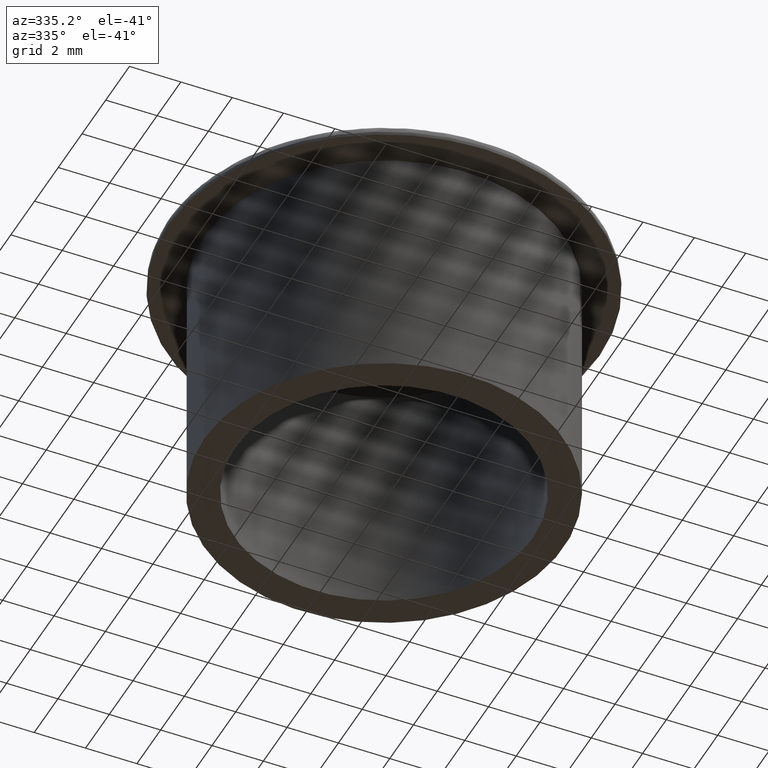
[diagram: clean part render]
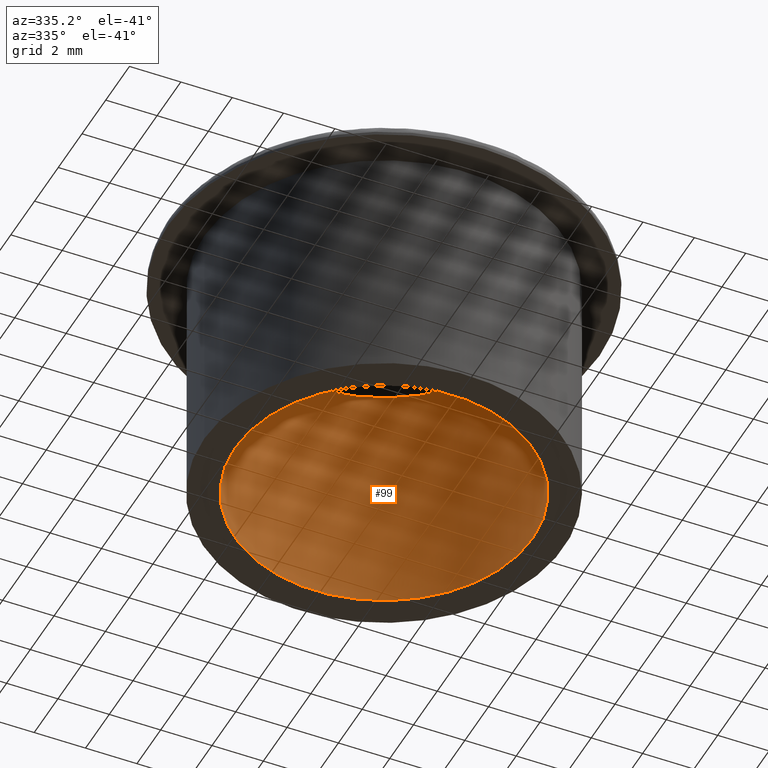
[diagram: same view with one face highlighted and labeled with its STEP entity id]
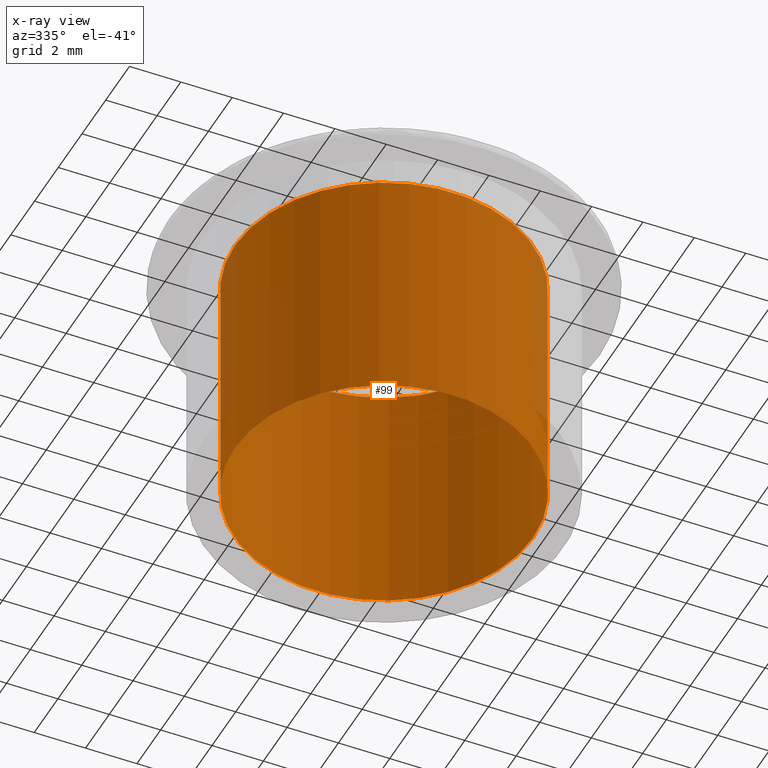
[diagram: x-ray of the same camera — body ghosted, the highlighted face saturated]
A machine part, auxiliary view. The second image highlights one B-rep face of the part: STEP entity #99.
The next image is the same camera in x-ray: the body ghosted, the highlighted face saturated — about 4% of this face is hidden behind the body in this view.
In plain terms, the highlighted cylindrical surface (bore or boss wall) has radius 5.8 mm, axis along (0, 0, -1).
Its self-contained STEP definition (entity closure, byte-faithful):
#17=FACE_BOUND('',#35,.T.);
#22=CYLINDRICAL_SURFACE('',#110,5.79999999999998);
#26=FACE_OUTER_BOUND('',#34,.T.);
#34=EDGE_LOOP('',(#76));
#35=EDGE_LOOP('',(#77));
#46=CIRCLE('',#109,5.79999999999998);
#47=CIRCLE('',#111,5.8);
#56=VERTEX_POINT('',#163);
#57=VERTEX_POINT('',#166);
#65=EDGE_CURVE('',#56,#56,#46,.T.);
#66=EDGE_CURVE('',#57,#57,#47,.T.);
#76=ORIENTED_EDGE('',*,*,#66,.T.);
#77=ORIENTED_EDGE('',*,*,#65,.F.);
#99=ADVANCED_FACE('',(#26,#17),#22,.F.);
#109=AXIS2_PLACEMENT_3D('',#164,#129,#130);
#110=AXIS2_PLACEMENT_3D('',#165,#131,#132);
#111=AXIS2_PLACEMENT_3D('',#167,#133,#134);
#129=DIRECTION('center_axis',(0.,0.,-1.));
#130=DIRECTION('ref_axis',(1.,0.,0.));
#131=DIRECTION('center_axis',(0.,0.,-1.));
#132=DIRECTION('ref_axis',(1.,0.,0.));
#133=DIRECTION('center_axis',(0.,0.,-1.));
#134=DIRECTION('ref_axis',(1.,0.,0.));
#163=CARTESIAN_POINT('',(-5.79999999999998,9.5,0.));
#164=CARTESIAN_POINT('Origin',(0.,9.5,0.));
#165=CARTESIAN_POINT('Origin',(0.,9.5,0.));
#166=CARTESIAN_POINT('',(-5.8,9.5,-9.5));
#167=CARTESIAN_POINT('Origin',(0.,9.5,-9.5));